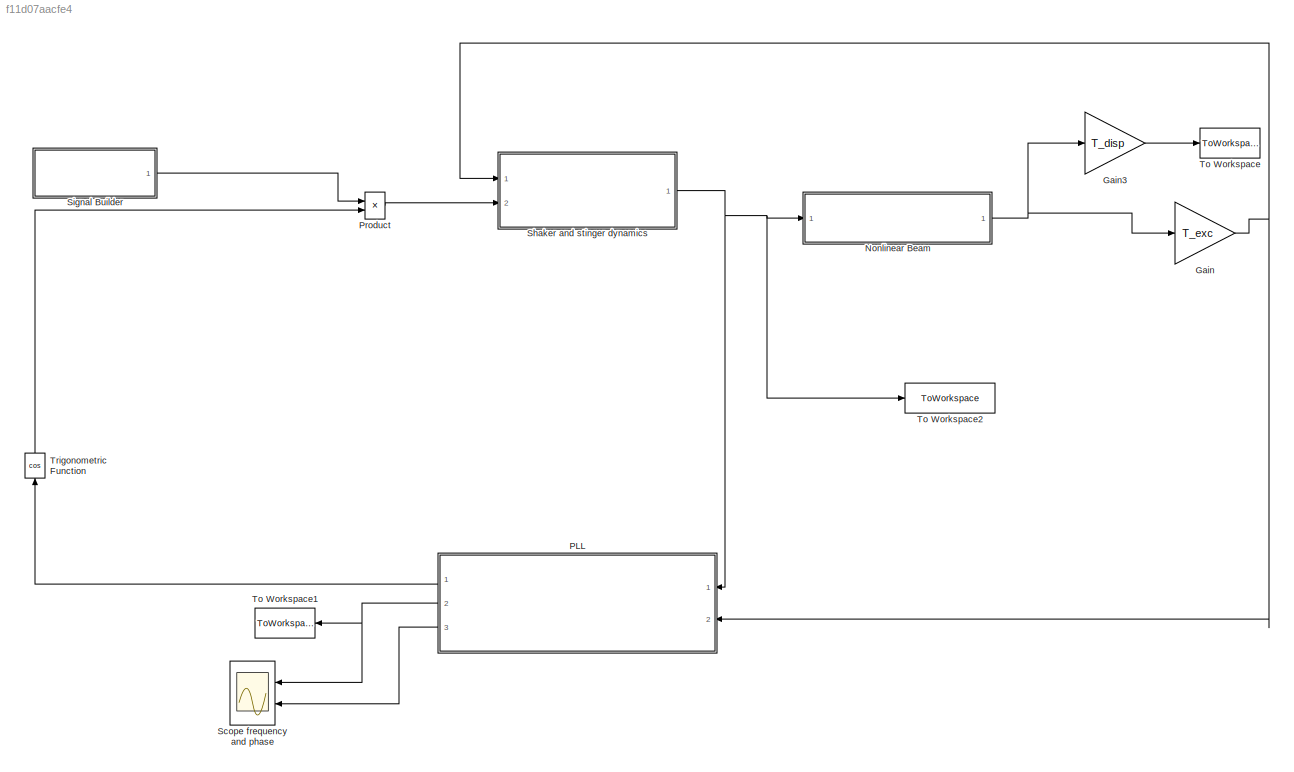
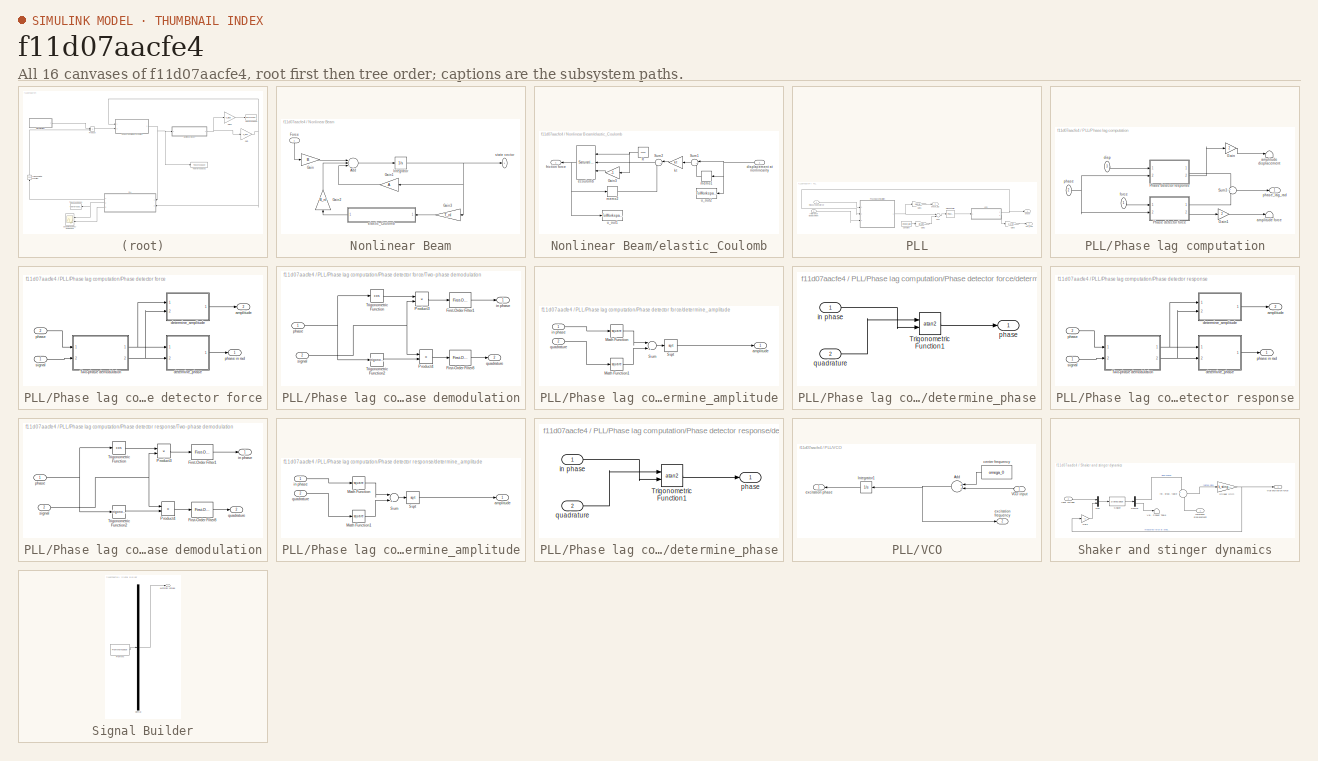
[diagram: thumbnail index - all 16 canvases of the model, root first then tree order]
MODEL slx_f11d07aacfe4
KIND model
CONFIG AbsTol = auto
CONFIG EnableMultiTasking = on
CONFIG FixedStep = step_size
CONFIG MaxStep = auto
CONFIG MinStep = auto
CONFIG RelTol = 1e-7
CONFIG SampleTimeConstraint = Unconstrained
CONFIG Solver = VariableStepAuto
CONFIG SolverName = VariableStepAuto
CONFIG StartTime = 0.0
CONFIG StopTime = simtime
BLOCK [Gain] Gain
  Gain = T_exc
  Multiplication = Matrix(K*u)
  OutDataTypeStr = Inherit: Inherit via internal rule
  ParamDataTypeStr = Inherit: Inherit via internal rule
  SaturateOnIntegerOverflow = off
BLOCK [Gain] Gain3
  Gain = T_disp
  Multiplication = Matrix(K*u)
  OutDataTypeStr = Inherit: Inherit via internal rule
  ParamDataTypeStr = Inherit: Inherit via internal rule
  SaturateOnIntegerOverflow = off
BLOCK [SubSystem] Nonlinear Beam
  Ports = [1, 1]
  RequestExecContextInheritance = off
  Variant = off
BLOCK [Sum] Nonlinear Beam/Add
  InputSameDT = off
  Inputs = +-+
  OutDataTypeStr = Inherit: Inherit via internal rule
  Ports = [3, 1]
  SaturateOnIntegerOverflow = off
BLOCK [Inport] Nonlinear Beam/Force
  IconDisplay = Port number
BLOCK [Gain] Nonlinear Beam/Gain
  Gain = B
  OutDataTypeStr = Inherit: Inherit via internal rule
  ParamDataTypeStr = Inherit: Inherit via internal rule
  SaturateOnIntegerOverflow = off
BLOCK [Gain] Nonlinear Beam/Gain1
  Gain = A
  Multiplication = Matrix(K*u) (u vector)
  OutDataTypeStr = Inherit: Inherit via internal rule
  ParamDataTypeStr = Inherit: Inherit via internal rule
  SaturateOnIntegerOverflow = off
BLOCK [Gain] Nonlinear Beam/Gain2
  Gain = B_nl
  OutDataTypeStr = Inherit: Inherit via internal rule
  ParamDataTypeStr = Inherit: Inherit via internal rule
  SaturateOnIntegerOverflow = off
BLOCK [Gain] Nonlinear Beam/Gain3
  Gain = T_nl
  Multiplication = Matrix(K*u)
  OutDataTypeStr = Inherit: Inherit via internal rule
  ParamDataTypeStr = Inherit: Inherit via internal rule
  SaturateOnIntegerOverflow = off
BLOCK [Integrator] Nonlinear Beam/Integrator
  InitialCondition = x0beam
  Ports = [1, 1]
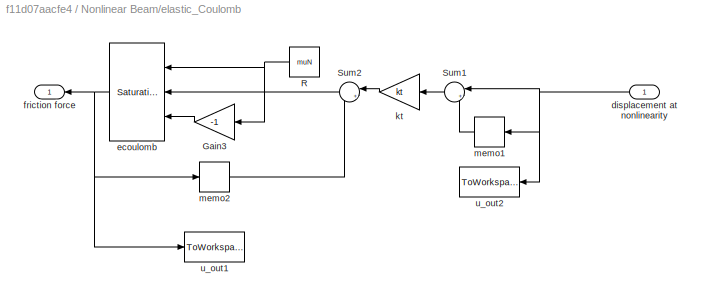
BLOCK [SubSystem] Nonlinear Beam/elastic_Coulomb
  Ports = [1, 1]
  RequestExecContextInheritance = off
  Variant = off
BLOCK [Gain] Nonlinear Beam/elastic_Coulomb/Gain3
  Gain = -1
  OutDataTypeStr = Inherit: Inherit via internal rule
  ParamDataTypeStr = Inherit: Inherit via internal rule
  SaturateOnIntegerOverflow = off
BLOCK [Constant] Nonlinear Beam/elastic_Coulomb/R
  Value = muN
BLOCK [Sum] Nonlinear Beam/elastic_Coulomb/Sum1
  IconShape = round
  InputSameDT = off
  Inputs = |+-
  OutDataTypeStr = Inherit: Inherit via internal rule
  Ports = [2, 1]
  SaturateOnIntegerOverflow = off
BLOCK [Sum] Nonlinear Beam/elastic_Coulomb/Sum2
  IconShape = round
  InputSameDT = off
  Inputs = |++
  OutDataTypeStr = Inherit: Inherit via internal rule
  Ports = [2, 1]
  SaturateOnIntegerOverflow = off
BLOCK [Inport] Nonlinear Beam/elastic_Coulomb/displacement at nonlinearity
  IconDisplay = Port number
BLOCK [Reference] Nonlinear Beam/elastic_Coulomb/ecoulomb  REF=simulink/Discontinuities/Saturation
Dynamic
  Ports = [3, 1]
  SourceBlock = simulink/Discontinuities/Saturation\nDynamic
  SourceType = Saturation Dynamic
BLOCK [Outport] Nonlinear Beam/elastic_Coulomb/friction force
  IconDisplay = Port number
BLOCK [Gain] Nonlinear Beam/elastic_Coulomb/kt
  Gain = kt
  OutDataTypeStr = Inherit: Inherit via internal rule
  ParamDataTypeStr = Inherit: Inherit via internal rule
  SaturateOnIntegerOverflow = off
BLOCK [Memory] Nonlinear Beam/elastic_Coulomb/memo1
BLOCK [Memory] Nonlinear Beam/elastic_Coulomb/memo2
BLOCK [ToWorkspace] Nonlinear Beam/elastic_Coulomb/u_out1
  MaxDataPoints = inf
  Ports = [1]
  SampleTime = -1
  VariableName = fr
BLOCK [ToWorkspace] Nonlinear Beam/elastic_Coulomb/u_out2
  MaxDataPoints = 1
  Ports = [1]
  SampleTime = -1
  VariableName = unl
BLOCK [Outport] Nonlinear Beam/state vector
  IconDisplay = Port number
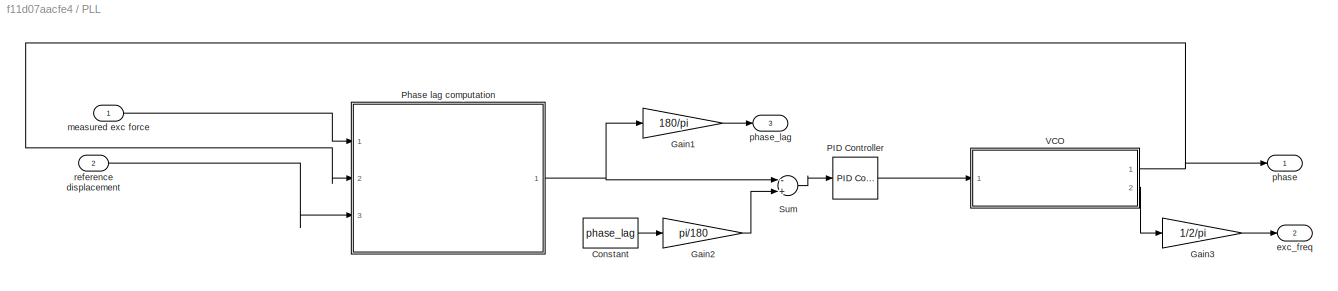
BLOCK [SubSystem] PLL
  Ports = [2, 3]
  RequestExecContextInheritance = off
  Variant = off
BLOCK [Constant] PLL/Constant
  Value = phase_lag
BLOCK [Gain] PLL/Gain1
  Gain = 180/pi
  OutDataTypeStr = Inherit: Inherit via internal rule
  ParamDataTypeStr = Inherit: Inherit via internal rule
  SaturateOnIntegerOverflow = off
BLOCK [Gain] PLL/Gain2
  Gain = pi/180
  OutDataTypeStr = Inherit: Inherit via internal rule
  ParamDataTypeStr = Inherit: Inherit via internal rule
  SaturateOnIntegerOverflow = off
BLOCK [Gain] PLL/Gain3
  Gain = 1/2/pi
  OutDataTypeStr = Inherit: Inherit via internal rule
  ParamDataTypeStr = Inherit: Inherit via internal rule
  SaturateOnIntegerOverflow = off
BLOCK [Reference] PLL/PID Controller  REF=simulink/Continuous/PID Controller
  Ports = [1, 1]
  SourceBlock = simulink/Continuous/PID Controller
  SourceType = PID 1dof
BLOCK [SubSystem] PLL/Phase lag computation
  Ports = [3, 1]
  RequestExecContextInheritance = off
  Variant = off
BLOCK [Gain] PLL/Phase lag computation/Gain
  Gain = 2
  OutDataTypeStr = Inherit: Inherit via internal rule
  ParamDataTypeStr = Inherit: Inherit via internal rule
  SaturateOnIntegerOverflow = off
BLOCK [Gain] PLL/Phase lag computation/Gain1
  Gain = 2
  OutDataTypeStr = Inherit: Inherit via internal rule
  ParamDataTypeStr = Inherit: Inherit via internal rule
  SaturateOnIntegerOverflow = off
BLOCK [SubSystem] PLL/Phase lag computation/Phase detector force
  Ports = [2, 2]
  RequestExecContextInheritance = off
  Variant = off
BLOCK [SubSystem] PLL/Phase lag computation/Phase detector force/Two-phase demodulation
  Ports = [2, 2]
  RequestExecContextInheritance = off
  Variant = off
BLOCK [Reference] PLL/Phase lag computation/Phase detector force/Two-phase demodulation/First-Order Filter1  REF=powerlib_meascontrol/Filters/First-Order
Filter
  Ports = [1, 1]
  SourceBlock = powerlib_meascontrol/Filters/First-Order\nFilter
  SourceType = First-Order Filter
BLOCK [Reference] PLL/Phase lag computation/Phase detector force/Two-phase demodulation/First-Order Filter8  REF=powerlib_meascontrol/Filters/First-Order
Filter
  Ports = [1, 1]
  SourceBlock = powerlib_meascontrol/Filters/First-Order\nFilter
  SourceType = First-Order Filter
BLOCK [Product] PLL/Phase lag computation/Phase detector force/Two-phase demodulation/Product3
  InputSameDT = off
  OutDataTypeStr = Inherit: Inherit via internal rule
  Ports = [2, 1]
  RndMeth = Floor
  SaturateOnIntegerOverflow = off
BLOCK [Product] PLL/Phase lag computation/Phase detector force/Two-phase demodulation/Product4
  InputSameDT = off
  OutDataTypeStr = Inherit: Inherit via internal rule
  Ports = [2, 1]
  RndMeth = Floor
  SaturateOnIntegerOverflow = off
BLOCK [Trigonometry] PLL/Phase lag computation/Phase detector force/Two-phase demodulation/Trigonometric Function
  Operator = cos
  Ports = [1, 1]
BLOCK [Trigonometry] PLL/Phase lag computation/Phase detector force/Two-phase demodulation/Trigonometric Function2
  Ports = [1, 1]
BLOCK [Outport] PLL/Phase lag computation/Phase detector force/Two-phase demodulation/in phase
  IconDisplay = Port number
BLOCK [Inport] PLL/Phase lag computation/Phase detector force/Two-phase demodulation/phase
  IconDisplay = Port number
BLOCK [Outport] PLL/Phase lag computation/Phase detector force/Two-phase demodulation/quadrature
  IconDisplay = Port number
  Port = 2
BLOCK [Inport] PLL/Phase lag computation/Phase detector force/Two-phase demodulation/signal
  IconDisplay = Port number
  Port = 2
BLOCK [Outport] PLL/Phase lag computation/Phase detector force/amplitude
  IconDisplay = Port number
  Port = 2
BLOCK [SubSystem] PLL/Phase lag computation/Phase detector force/determine_amplitude
  Ports = [2, 1]
  RequestExecContextInheritance = off
  Variant = off
BLOCK [Math] PLL/Phase lag computation/Phase detector force/determine_amplitude/Math Function
  Operator = square
  Ports = [1, 1]
BLOCK [Math] PLL/Phase lag computation/Phase detector force/determine_amplitude/Math Function1
  Operator = square
  Ports = [1, 1]
BLOCK [Sqrt] PLL/Phase lag computation/Phase detector force/determine_amplitude/Sqrt
BLOCK [Sum] PLL/Phase lag computation/Phase detector force/determine_amplitude/Sum
  InputSameDT = off
  Inputs = |++
  OutDataTypeStr = Inherit: Inherit via internal rule
  Ports = [2, 1]
  SaturateOnIntegerOverflow = off
BLOCK [Outport] PLL/Phase lag computation/Phase detector force/determine_amplitude/amplitude
  IconDisplay = Port number
BLOCK [Inport] PLL/Phase lag computation/Phase detector force/determine_amplitude/in phase
  IconDisplay = Port number
BLOCK [Inport] PLL/Phase lag computation/Phase detector force/determine_amplitude/quadrature
  IconDisplay = Port number
  Port = 2
BLOCK [SubSystem] PLL/Phase lag computation/Phase detector force/determine_phase
  Ports = [2, 1]
  RequestExecContextInheritance = off
  Variant = off
BLOCK [Trigonometry] PLL/Phase lag computation/Phase detector force/determine_phase/Trigonometric Function1
  Operator = atan2
  Ports = [2, 1]
BLOCK [Inport] PLL/Phase lag computation/Phase detector force/determine_phase/in phase
  IconDisplay = Port number
BLOCK [Outport] PLL/Phase lag computation/Phase detector force/determine_phase/phase
  IconDisplay = Port number
BLOCK [Inport] PLL/Phase lag computation/Phase detector force/determine_phase/quadrature
  IconDisplay = Port number
  Port = 2
BLOCK [Inport] PLL/Phase lag computation/Phase detector force/phase
  IconDisplay = Port number
  Port = 2
BLOCK [Outport] PLL/Phase lag computation/Phase detector force/phase in rad
  IconDisplay = Port number
BLOCK [Inport] PLL/Phase lag computation/Phase detector force/signal
  IconDisplay = Port number
BLOCK [SubSystem] PLL/Phase lag computation/Phase detector response
  Ports = [2, 2]
  RequestExecContextInheritance = off
  Variant = off
BLOCK [SubSystem] PLL/Phase lag computation/Phase detector response/Two-phase demodulation
  Ports = [2, 2]
  RequestExecContextInheritance = off
  Variant = off
BLOCK [Reference] PLL/Phase lag computation/Phase detector response/Two-phase demodulation/First-Order Filter1  REF=powerlib_meascontrol/Filters/First-Order
Filter
  Ports = [1, 1]
  SourceBlock = powerlib_meascontrol/Filters/First-Order\nFilter
  SourceType = First-Order Filter
BLOCK [Reference] PLL/Phase lag computation/Phase detector response/Two-phase demodulation/First-Order Filter8  REF=powerlib_meascontrol/Filters/First-Order
Filter
  Ports = [1, 1]
  SourceBlock = powerlib_meascontrol/Filters/First-Order\nFilter
  SourceType = First-Order Filter
BLOCK [Product] PLL/Phase lag computation/Phase detector response/Two-phase demodulation/Product3
  InputSameDT = off
  OutDataTypeStr = Inherit: Inherit via internal rule
  Ports = [2, 1]
  RndMeth = Floor
  SaturateOnIntegerOverflow = off
BLOCK [Product] PLL/Phase lag computation/Phase detector response/Two-phase demodulation/Product4
  InputSameDT = off
  OutDataTypeStr = Inherit: Inherit via internal rule
  Ports = [2, 1]
  RndMeth = Floor
  SaturateOnIntegerOverflow = off
BLOCK [Trigonometry] PLL/Phase lag computation/Phase detector response/Two-phase demodulation/Trigonometric Function
  Operator = cos
  Ports = [1, 1]
BLOCK [Trigonometry] PLL/Phase lag computation/Phase detector response/Two-phase demodulation/Trigonometric Function2
  Ports = [1, 1]
BLOCK [Outport] PLL/Phase lag computation/Phase detector response/Two-phase demodulation/in phase
  IconDisplay = Port number
BLOCK [Inport] PLL/Phase lag computation/Phase detector response/Two-phase demodulation/phase
  IconDisplay = Port number
BLOCK [Outport] PLL/Phase lag computation/Phase detector response/Two-phase demodulation/quadrature
  IconDisplay = Port number
  Port = 2
BLOCK [Inport] PLL/Phase lag computation/Phase detector response/Two-phase demodulation/signal
  IconDisplay = Port number
  Port = 2
BLOCK [Outport] PLL/Phase lag computation/Phase detector response/amplitude
  IconDisplay = Port number
  Port = 2
BLOCK [SubSystem] PLL/Phase lag computation/Phase detector response/determine_amplitude
  Ports = [2, 1]
  RequestExecContextInheritance = off
  Variant = off
BLOCK [Math] PLL/Phase lag computation/Phase detector response/determine_amplitude/Math Function
  Operator = square
  Ports = [1, 1]
BLOCK [Math] PLL/Phase lag computation/Phase detector response/determine_amplitude/Math Function1
  Operator = square
  Ports = [1, 1]
BLOCK [Sqrt] PLL/Phase lag computation/Phase detector response/determine_amplitude/Sqrt
BLOCK [Sum] PLL/Phase lag computation/Phase detector response/determine_amplitude/Sum
  InputSameDT = off
  Inputs = |++
  OutDataTypeStr = Inherit: Inherit via internal rule
  Ports = [2, 1]
  SaturateOnIntegerOverflow = off
BLOCK [Outport] PLL/Phase lag computation/Phase detector response/determine_amplitude/amplitude
  IconDisplay = Port number
BLOCK [Inport] PLL/Phase lag computation/Phase detector response/determine_amplitude/in phase
  IconDisplay = Port number
BLOCK [Inport] PLL/Phase lag computation/Phase detector response/determine_amplitude/quadrature
  IconDisplay = Port number
  Port = 2
BLOCK [SubSystem] PLL/Phase lag computation/Phase detector response/determine_phase
  Ports = [2, 1]
  RequestExecContextInheritance = off
  Variant = off
BLOCK [Trigonometry] PLL/Phase lag computation/Phase detector response/determine_phase/Trigonometric Function1
  Operator = atan2
  Ports = [2, 1]
BLOCK [Inport] PLL/Phase lag computation/Phase detector response/determine_phase/in phase
  IconDisplay = Port number
BLOCK [Outport] PLL/Phase lag computation/Phase detector response/determine_phase/phase
  IconDisplay = Port number
BLOCK [Inport] PLL/Phase lag computation/Phase detector response/determine_phase/quadrature
  IconDisplay = Port number
  Port = 2
BLOCK [Inport] PLL/Phase lag computation/Phase detector response/phase
  IconDisplay = Port number
  Port = 2
BLOCK [Outport] PLL/Phase lag computation/Phase detector response/phase in rad
  IconDisplay = Port number
BLOCK [Inport] PLL/Phase lag computation/Phase detector response/signal
  IconDisplay = Port number
BLOCK [Sum] PLL/Phase lag computation/Sum3
  IconShape = round
  InputSameDT = off
  Inputs = +-
  OutDataTypeStr = Inherit: Inherit via internal rule
  Ports = [2, 1]
  SaturateOnIntegerOverflow = off
BLOCK [Terminator] PLL/Phase lag computation/amplitude displacement
BLOCK [Terminator] PLL/Phase lag computation/amplitude force
BLOCK [Inport] PLL/Phase lag computation/disp
  IconDisplay = Port number
  Port = 3
BLOCK [Inport] PLL/Phase lag computation/force
  IconDisplay = Port number
BLOCK [Inport] PLL/Phase lag computation/phase
  IconDisplay = Port number
  Port = 2
BLOCK [Outport] PLL/Phase lag computation/phase_lag_rad
  IconDisplay = Port number
BLOCK [Sum] PLL/Sum
  InputSameDT = off
  Inputs = -+
  OutDataTypeStr = Inherit: Inherit via internal rule
  Ports = [2, 1]
  SaturateOnIntegerOverflow = off
BLOCK [SubSystem] PLL/VCO
  Ports = [1, 2]
  RequestExecContextInheritance = off
  Variant = off
BLOCK [Sum] PLL/VCO/Add
  InputSameDT = off
  OutDataTypeStr = Inherit: Inherit via internal rule
  Ports = [2, 1]
  SaturateOnIntegerOverflow = off
BLOCK [Integrator] PLL/VCO/Integrator1
  InitialCondition = x0vco
  Ports = [1, 1]
BLOCK [Inport] PLL/VCO/VCO input
  IconDisplay = Port number
BLOCK [Constant] PLL/VCO/center frequency
  Value = omega_0
BLOCK [Outport] PLL/VCO/excitation frequency
  IconDisplay = Port number
  Port = 2
BLOCK [Outport] PLL/VCO/excitation phase
  IconDisplay = Port number
BLOCK [Outport] PLL/exc_freq
  IconDisplay = Port number
  Port = 2
BLOCK [Inport] PLL/measured exc force
  IconDisplay = Port number
BLOCK [Outport] PLL/phase
  IconDisplay = Port number
BLOCK [Outport] PLL/phase_lag
  IconDisplay = Port number
  Port = 3
BLOCK [Inport] PLL/reference displacement
  IconDisplay = Port number
  Port = 2
BLOCK [Product] Product
  InputSameDT = off
  OutDataTypeStr = Inherit: Inherit via internal rule
  Ports = [2, 1]
  SaturateOnIntegerOverflow = off
BLOCK [Scope] Scope frequency and phase
  NumInputPorts = 2
  Ports = [2]
  ScopeSpecificationString = Simulink.scopes.TimeScopeBlockCfg('CurrentConfiguration', extmgr.ConfigurationSet(extmgr.Configuration('Core','General UI',true),extmgr.Configuration('Core','Source UI',true),extmgr.Configuration('Sources','WiredSimulink',true,'DataLoggingVariableName','ScopeData1'),extmgr.Configuration('Visuals','Time Domain',true,'SerializedDisplays',{struct('MinYLimReal','47.88673','MaxYLimReal','65.10906','YLa...<+2043ch>
BLOCK [SubSystem] Shaker and stinger dynamics
  Ports = [2, 1]
  RequestExecContextInheritance = off
  Variant = off
BLOCK [Demux] Shaker and stinger dynamics/Demux
  DisplayOption = bar
  Outputs = 2
  Ports = [1, 2]
BLOCK [Gain] Shaker and stinger dynamics/Gain
  Gain = -1
  OutDataTypeStr = Inherit: Inherit via internal rule
  ParamDataTypeStr = Inherit: Inherit via internal rule
  SaturateOnIntegerOverflow = off
BLOCK [Mux] Shaker and stinger dynamics/Mux
  DisplayOption = bar
  Inputs = 2
  Ports = [2, 1]
BLOCK [StateSpace] Shaker and stinger dynamics/Shaker
  A = A_shaker
  B = B_shaker
  C = C_shaker
  D = [0 0;0 0]
  Ports = [1, 1]
  X0 = 0
BLOCK [Gain] Shaker and stinger dynamics/Stinger Stiff.
  Gain = k_stinger
  OutDataTypeStr = Inherit: Inherit via internal rule
  ParamDataTypeStr = Inherit: Inherit via internal rule
  SaturateOnIntegerOverflow = off
BLOCK [Terminator] Shaker and stinger dynamics/Vel. Shaker Table
BLOCK [Inport] Shaker and stinger dynamics/input voltage
  IconDisplay = Port number
  Port = 2
BLOCK [Inport] Shaker and stinger dynamics/reference displacement
  IconDisplay = Port number
BLOCK [Sum] Shaker and stinger dynamics/rel. displ. table
  IconShape = round
  InputSameDT = off
  Inputs = +-
  OutDataTypeStr = Inherit: Inherit via internal rule
  Ports = [2, 1]
  SaturateOnIntegerOverflow = off
BLOCK [Outport] Shaker and stinger dynamics/true excitation force
  IconDisplay = Port number
BLOCK [SubSystem] Signal Builder
  ClipboardFcn = sigbuilder_block('clipboard');
  CloseFcn = sigbuilder_block('close');
  ContinueFcn = sigbuilder_block('continue');
  CopyFcn = sigbuilder_block('copy');
  DeleteFcn = sigbuilder_block('delete');
  LoadFcn = sigbuilder_block('load');
  MaskHideContents = on
  ModelCloseFcn = sigbuilder_block('modelClose');
  NameChangeFcn = sigbuilder_block('namechange');
  OpenFcn = sigbuilder_block('open',[437.6 199.2 550.4 400 ]);
  PauseFcn = sigbuilder_block('pause');
  Ports = [0, 1]
  PreSaveFcn = sigbuilder_block('preSave');
  RequestExecContextInheritance = off
  StartFcn = sigbuilder_block('start');
  StopFcn = sigbuilder_block('stop');
  Tag = STV Subsys
  Variant = off
BLOCK [Demux] Signal Builder/Demux
  Outputs = 1
  Ports = [1, 1]
  Tag = STV Demux
BLOCK [FromWorkspace] Signal Builder/FromWs
  SampleTime = 0
  Tag = STV FromWs
  VariableName = tuvar
  ZeroCross = on
BLOCK [Outport] Signal Builder/excitation voltage
  IconDisplay = Port number
  Tag = STV Outport
BLOCK [ToWorkspace] To Workspace
  MaxDataPoints = inf
  Ports = [1]
  SampleTime = -1
  SaveFormat = Structure With Time
  VariableName = displacement
BLOCK [ToWorkspace] To Workspace1
  MaxDataPoints = inf
  Ports = [1]
  SampleTime = -1
  SaveFormat = Structure With Time
  VariableName = exc_freq
BLOCK [ToWorkspace] To Workspace2
  MaxDataPoints = inf
  Ports = [1]
  SampleTime = -1
  SaveFormat = Structure With Time
  VariableName = excitation_force
BLOCK [Trigonometry] Trigonometric Function
  Operator = cos
  Ports = [1, 1]
LINE Gain3:1 -> To Workspace:1
NET Gain:1 -> PLL:2, Shaker and stinger dynamics:1
LINE Nonlinear Beam/Add:1 -> Nonlinear Beam/Integrator:1
LINE Nonlinear Beam/Force:1 -> Nonlinear Beam/Gain:1
LINE Nonlinear Beam/Gain1:1 -> Nonlinear Beam/Add:3
LINE Nonlinear Beam/Gain2:1 -> Nonlinear Beam/Add:2
LINE Nonlinear Beam/Gain3:1 -> Nonlinear Beam/elastic_Coulomb:1
LINE Nonlinear Beam/Gain:1 -> Nonlinear Beam/Add:1
NET Nonlinear Beam/Integrator:1 -> Nonlinear Beam/Gain1:1, Nonlinear Beam/Gain3:1, Nonlinear Beam/state vector:1
LINE Nonlinear Beam/elastic_Coulomb/Gain3:1 -> Nonlinear Beam/elastic_Coulomb/ecoulomb:3
NET Nonlinear Beam/elastic_Coulomb/R:1 -> Nonlinear Beam/elastic_Coulomb/Gain3:1, Nonlinear Beam/elastic_Coulomb/ecoulomb:1
LINE Nonlinear Beam/elastic_Coulomb/Sum1:1 -> Nonlinear Beam/elastic_Coulomb/kt:1
LINE Nonlinear Beam/elastic_Coulomb/Sum2:1 -> Nonlinear Beam/elastic_Coulomb/ecoulomb:2
NET Nonlinear Beam/elastic_Coulomb/displacement at nonlinearity:1 -> Nonlinear Beam/elastic_Coulomb/Sum1:1, Nonlinear Beam/elastic_Coulomb/memo1:1, Nonlinear Beam/elastic_Coulomb/u_out2:1
NET Nonlinear Beam/elastic_Coulomb/ecoulomb:1 -> Nonlinear Beam/elastic_Coulomb/friction force:1, Nonlinear Beam/elastic_Coulomb/memo2:1, Nonlinear Beam/elastic_Coulomb/u_out1:1
LINE Nonlinear Beam/elastic_Coulomb/kt:1 -> Nonlinear Beam/elastic_Coulomb/Sum2:1
LINE Nonlinear Beam/elastic_Coulomb/memo1:1 -> Nonlinear Beam/elastic_Coulomb/Sum1:2
LINE Nonlinear Beam/elastic_Coulomb/memo2:1 -> Nonlinear Beam/elastic_Coulomb/Sum2:2
LINE Nonlinear Beam/elastic_Coulomb:1 -> Nonlinear Beam/Gain2:1
NET Nonlinear Beam:1 -> Gain3:1, Gain:1
LINE PLL/Constant:1 -> PLL/Gain2:1
LINE PLL/Gain1:1 -> PLL/phase_lag:1
LINE PLL/Gain2:1 -> PLL/Sum:2
LINE PLL/Gain3:1 -> PLL/exc_freq:1
LINE PLL/PID Controller:1 -> PLL/VCO:1
LINE PLL/Phase lag computation/Gain1:1 -> PLL/Phase lag computation/amplitude force:1
LINE PLL/Phase lag computation/Gain:1 -> PLL/Phase lag computation/amplitude displacement:1
LINE PLL/Phase lag computation/Phase detector force/Two-phase demodulation/First-Order Filter1:1 -> PLL/Phase lag computation/Phase detector force/Two-phase demodulation/in phase:1
LINE PLL/Phase lag computation/Phase detector force/Two-phase demodulation/First-Order Filter8:1 -> PLL/Phase lag computation/Phase detector force/Two-phase demodulation/quadrature:1
LINE PLL/Phase lag computation/Phase detector force/Two-phase demodulation/Product3:1 -> PLL/Phase lag computation/Phase detector force/Two-phase demodulation/First-Order Filter1:1
LINE PLL/Phase lag computation/Phase detector force/Two-phase demodulation/Product4:1 -> PLL/Phase lag computation/Phase detector force/Two-phase demodulation/First-Order Filter8:1
LINE PLL/Phase lag computation/Phase detector force/Two-phase demodulation/Trigonometric Function2:1 -> PLL/Phase lag computation/Phase detector force/Two-phase demodulation/Product4:2
LINE PLL/Phase lag computation/Phase detector force/Two-phase demodulation/Trigonometric Function:1 -> PLL/Phase lag computation/Phase detector force/Two-phase demodulation/Product3:1
NET PLL/Phase lag computation/Phase detector force/Two-phase demodulation/phase:1 -> PLL/Phase lag computation/Phase detector force/Two-phase demodulation/Trigonometric Function2:1, PLL/Phase lag computation/Phase detector force/Two-phase demodulation/Trigonometric Function:1
NET PLL/Phase lag computation/Phase detector force/Two-phase demodulation/signal:1 -> PLL/Phase lag computation/Phase detector force/Two-phase demodulation/Product3:2, PLL/Phase lag computation/Phase detector force/Two-phase demodulation/Product4:1
NET PLL/Phase lag computation/Phase detector force/Two-phase demodulation:1 -> PLL/Phase lag computation/Phase detector force/determine_amplitude:1, PLL/Phase lag computation/Phase detector force/determine_phase:1
NET PLL/Phase lag computation/Phase detector force/Two-phase demodulation:2 -> PLL/Phase lag computation/Phase detector force/determine_amplitude:2, PLL/Phase lag computation/Phase detector force/determine_phase:2
LINE PLL/Phase lag computation/Phase detector force/determine_amplitude/Math Function1:1 -> PLL/Phase lag computation/Phase detector force/determine_amplitude/Sum:2
LINE PLL/Phase lag computation/Phase detector force/determine_amplitude/Math Function:1 -> PLL/Phase lag computation/Phase detector force/determine_amplitude/Sum:1
LINE PLL/Phase lag computation/Phase detector force/determine_amplitude/Sqrt:1 -> PLL/Phase lag computation/Phase detector force/determine_amplitude/amplitude:1
LINE PLL/Phase lag computation/Phase detector force/determine_amplitude/Sum:1 -> PLL/Phase lag computation/Phase detector force/determine_amplitude/Sqrt:1
LINE PLL/Phase lag computation/Phase detector force/determine_amplitude/in phase:1 -> PLL/Phase lag computation/Phase detector force/determine_amplitude/Math Function:1
LINE PLL/Phase lag computation/Phase detector force/determine_amplitude/quadrature:1 -> PLL/Phase lag computation/Phase detector force/determine_amplitude/Math Function1:1
LINE PLL/Phase lag computation/Phase detector force/determine_amplitude:1 -> PLL/Phase lag computation/Phase detector force/amplitude:1
LINE PLL/Phase lag computation/Phase detector force/determine_phase/Trigonometric Function1:1 -> PLL/Phase lag computation/Phase detector force/determine_phase/phase:1
LINE PLL/Phase lag computation/Phase detector force/determine_phase/in phase:1 -> PLL/Phase lag computation/Phase detector force/determine_phase/Trigonometric Function1:2
LINE PLL/Phase lag computation/Phase detector force/determine_phase/quadrature:1 -> PLL/Phase lag computation/Phase detector force/determine_phase/Trigonometric Function1:1
LINE PLL/Phase lag computation/Phase detector force/determine_phase:1 -> PLL/Phase lag computation/Phase detector force/phase in rad:1
LINE PLL/Phase lag computation/Phase detector force/phase:1 -> PLL/Phase lag computation/Phase detector force/Two-phase demodulation:1
LINE PLL/Phase lag computation/Phase detector force/signal:1 -> PLL/Phase lag computation/Phase detector force/Two-phase demodulation:2
LINE PLL/Phase lag computation/Phase detector force:1 -> PLL/Phase lag computation/Sum3:2
LINE PLL/Phase lag computation/Phase detector force:2 -> PLL/Phase lag computation/Gain1:1
LINE PLL/Phase lag computation/Phase detector response/Two-phase demodulation/First-Order Filter1:1 -> PLL/Phase lag computation/Phase detector response/Two-phase demodulation/in phase:1
LINE PLL/Phase lag computation/Phase detector response/Two-phase demodulation/First-Order Filter8:1 -> PLL/Phase lag computation/Phase detector response/Two-phase demodulation/quadrature:1
LINE PLL/Phase lag computation/Phase detector response/Two-phase demodulation/Product3:1 -> PLL/Phase lag computation/Phase detector response/Two-phase demodulation/First-Order Filter1:1
LINE PLL/Phase lag computation/Phase detector response/Two-phase demodulation/Product4:1 -> PLL/Phase lag computation/Phase detector response/Two-phase demodulation/First-Order Filter8:1
LINE PLL/Phase lag computation/Phase detector response/Two-phase demodulation/Trigonometric Function2:1 -> PLL/Phase lag computation/Phase detector response/Two-phase demodulation/Product4:2
LINE PLL/Phase lag computation/Phase detector response/Two-phase demodulation/Trigonometric Function:1 -> PLL/Phase lag computation/Phase detector response/Two-phase demodulation/Product3:1
NET PLL/Phase lag computation/Phase detector response/Two-phase demodulation/phase:1 -> PLL/Phase lag computation/Phase detector response/Two-phase demodulation/Trigonometric Function2:1, PLL/Phase lag computation/Phase detector response/Two-phase demodulation/Trigonometric Function:1
NET PLL/Phase lag computation/Phase detector response/Two-phase demodulation/signal:1 -> PLL/Phase lag computation/Phase detector response/Two-phase demodulation/Product3:2, PLL/Phase lag computation/Phase detector response/Two-phase demodulation/Product4:1
NET PLL/Phase lag computation/Phase detector response/Two-phase demodulation:1 -> PLL/Phase lag computation/Phase detector response/determine_amplitude:1, PLL/Phase lag computation/Phase detector response/determine_phase:1
NET PLL/Phase lag computation/Phase detector response/Two-phase demodulation:2 -> PLL/Phase lag computation/Phase detector response/determine_amplitude:2, PLL/Phase lag computation/Phase detector response/determine_phase:2
LINE PLL/Phase lag computation/Phase detector response/determine_amplitude/Math Function1:1 -> PLL/Phase lag computation/Phase detector response/determine_amplitude/Sum:2
LINE PLL/Phase lag computation/Phase detector response/determine_amplitude/Math Function:1 -> PLL/Phase lag computation/Phase detector response/determine_amplitude/Sum:1
LINE PLL/Phase lag computation/Phase detector response/determine_amplitude/Sqrt:1 -> PLL/Phase lag computation/Phase detector response/determine_amplitude/amplitude:1
LINE PLL/Phase lag computation/Phase detector response/determine_amplitude/Sum:1 -> PLL/Phase lag computation/Phase detector response/determine_amplitude/Sqrt:1
LINE PLL/Phase lag computation/Phase detector response/determine_amplitude/in phase:1 -> PLL/Phase lag computation/Phase detector response/determine_amplitude/Math Function:1
LINE PLL/Phase lag computation/Phase detector response/determine_amplitude/quadrature:1 -> PLL/Phase lag computation/Phase detector response/determine_amplitude/Math Function1:1
LINE PLL/Phase lag computation/Phase detector response/determine_amplitude:1 -> PLL/Phase lag computation/Phase detector response/amplitude:1
LINE PLL/Phase lag computation/Phase detector response/determine_phase/Trigonometric Function1:1 -> PLL/Phase lag computation/Phase detector response/determine_phase/phase:1
LINE PLL/Phase lag computation/Phase detector response/determine_phase/in phase:1 -> PLL/Phase lag computation/Phase detector response/determine_phase/Trigonometric Function1:2
LINE PLL/Phase lag computation/Phase detector response/determine_phase/quadrature:1 -> PLL/Phase lag computation/Phase detector response/determine_phase/Trigonometric Function1:1
LINE PLL/Phase lag computation/Phase detector response/determine_phase:1 -> PLL/Phase lag computation/Phase detector response/phase in rad:1
LINE PLL/Phase lag computation/Phase detector response/phase:1 -> PLL/Phase lag computation/Phase detector response/Two-phase demodulation:1
LINE PLL/Phase lag computation/Phase detector response/signal:1 -> PLL/Phase lag computation/Phase detector response/Two-phase demodulation:2
LINE PLL/Phase lag computation/Phase detector response:1 -> PLL/Phase lag computation/Sum3:1
LINE PLL/Phase lag computation/Phase detector response:2 -> PLL/Phase lag computation/Gain:1
LINE PLL/Phase lag computation/Sum3:1 -> PLL/Phase lag computation/phase_lag_rad:1
LINE PLL/Phase lag computation/disp:1 -> PLL/Phase lag computation/Phase detector response:1
LINE PLL/Phase lag computation/force:1 -> PLL/Phase lag computation/Phase detector force:1
NET PLL/Phase lag computation/phase:1 -> PLL/Phase lag computation/Phase detector force:2, PLL/Phase lag computation/Phase detector response:2
NET PLL/Phase lag computation:1 -> PLL/Gain1:1, PLL/Sum:1
LINE PLL/Sum:1 -> PLL/PID Controller:1
NET PLL/VCO/Add:1 -> PLL/VCO/Integrator1:1, PLL/VCO/excitation frequency:1
LINE PLL/VCO/Integrator1:1 -> PLL/VCO/excitation phase:1
LINE PLL/VCO/VCO input:1 -> PLL/VCO/Add:2
LINE PLL/VCO/center frequency:1 -> PLL/VCO/Add:1
NET PLL/VCO:1 -> PLL/Phase lag computation:2, PLL/phase:1
LINE PLL/VCO:2 -> PLL/Gain3:1
LINE PLL/measured exc force:1 -> PLL/Phase lag computation:1
LINE PLL/reference displacement:1 -> PLL/Phase lag computation:3
LINE PLL:1 -> Trigonometric Function:1
NET PLL:2 -> Scope frequency and phase:1, To Workspace1:1
LINE PLL:3 -> Scope frequency and phase:2
LINE Product:1 -> Shaker and stinger dynamics:2
LINE Shaker and stinger dynamics/Demux:1 -> Shaker and stinger dynamics/rel. displ. table:1
LINE Shaker and stinger dynamics/Demux:2 -> Shaker and stinger dynamics/Vel. Shaker Table:1
LINE Shaker and stinger dynamics/Gain:1 -> Shaker and stinger dynamics/Mux:2
LINE Shaker and stinger dynamics/Mux:1 -> Shaker and stinger dynamics/Shaker:1
LINE Shaker and stinger dynamics/Shaker:1 -> Shaker and stinger dynamics/Demux:1
NET Shaker and stinger dynamics/Stinger Stiff.:1 -> Shaker and stinger dynamics/Gain:1, Shaker and stinger dynamics/true excitation force:1
LINE Shaker and stinger dynamics/input voltage:1 -> Shaker and stinger dynamics/Mux:1
LINE Shaker and stinger dynamics/reference displacement:1 -> Shaker and stinger dynamics/rel. displ. table:2
LINE Shaker and stinger dynamics/rel. displ. table:1 -> Shaker and stinger dynamics/Stinger Stiff.:1
NET Shaker and stinger dynamics:1 -> Nonlinear Beam:1, PLL:1, To Workspace2:1
LINE Signal Builder:1 -> Product:1
LINE Trigonometric Function:1 -> Product:2
note: NET lines group one-source signal fan-out (src -> all destinations, sorted); 1:1 wires keep LINE
